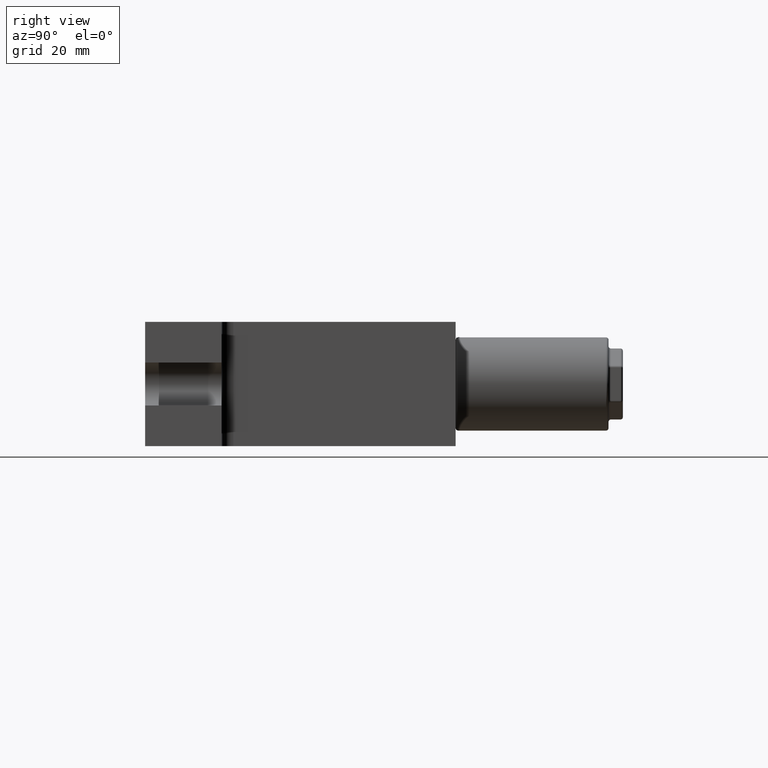
[diagram: clean part render]
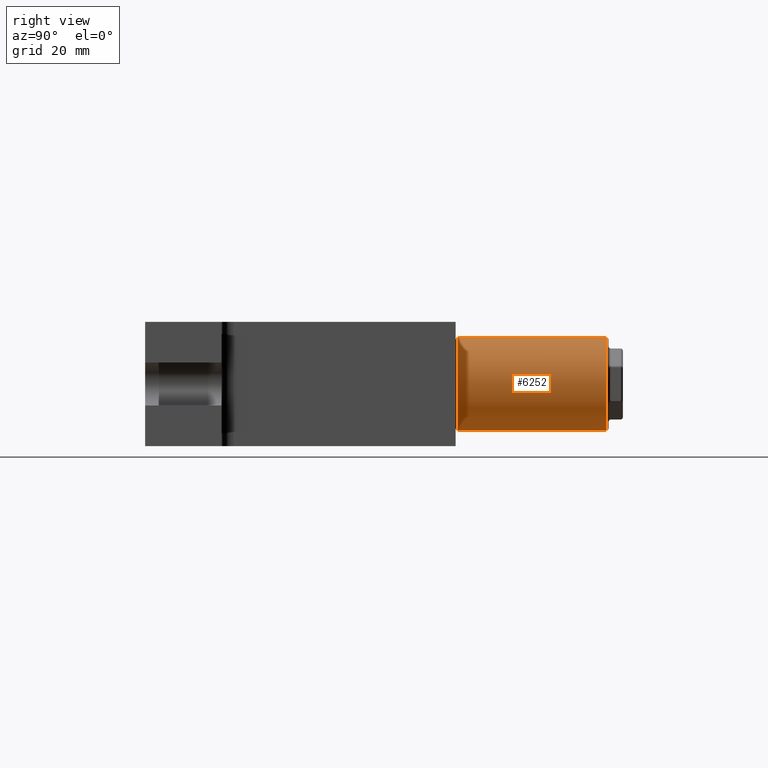
[diagram: same view with one face highlighted and labeled with its STEP entity id]
A machine part, right view. The second image highlights one B-rep face of the part: STEP entity #6252.
In plain terms, the highlighted cylindrical surface (partial cylindrical patch) has radius 9.75 mm, axis along (-0, -1, -0).
Its self-contained STEP definition (entity closure, byte-faithful):
#1 = VECTOR ( 'NONE', #5711, 1000.000000000000000 ) ;
#40 = EDGE_LOOP ( 'NONE', ( #5018, #374, #5954, #2409, #5528, #988, #4615, #1485, #4943, #904, #6233, #1662, #2667, #5456, #3946, #2729 ) ) ;
#54 = VERTEX_POINT ( 'NONE', #243 ) ;
#63 = CARTESIAN_POINT ( 'NONE',  ( -13.00000000000000400, 64.50000000000000000, -9.749999999999998200 ) ) ;
#166 = EDGE_CURVE ( 'NONE', #2999, #788, #1729, .T. ) ;
#174 = CARTESIAN_POINT ( 'NONE',  ( -12.99999999999999800, 64.50000000000000000, 9.750000000000001800 ) ) ;
#243 = CARTESIAN_POINT ( 'NONE',  ( -13.00000000000000000, 40.50000000000000000, 9.750000000000000000 ) ) ;
#292 = LINE ( 'NONE', #6026, #5026 ) ;
#304 = LINE ( 'NONE', #4168, #5886 ) ;
#334 = CARTESIAN_POINT ( 'NONE',  ( -13.00000000000000000, 33.00000000000000000, -1.133443605698015900E-014 ) ) ;
#374 = ORIENTED_EDGE ( 'NONE', *, *, #1121, .T. ) ;
#466 = CARTESIAN_POINT ( 'NONE',  ( -13.00000000000000000, 64.50000000000000000, -9.750000000000000000 ) ) ;
#594 = DIRECTION ( 'NONE',  ( -5.959270968386779200E-017, -1.000000000000000000, -1.089523766022739900E-016 ) ) ;
#599 = DIRECTION ( 'NONE',  ( -5.959270968386779200E-017, -1.000000000000000000, -1.089523766022739900E-016 ) ) ;
#602 = FACE_OUTER_BOUND ( 'NONE', #40, .T. ) ;
#630 = CARTESIAN_POINT ( 'NONE',  ( -13.00000000000000000, 50.50000000000000000, 9.750000000000000000 ) ) ;
#654 = EDGE_CURVE ( 'NONE', #1598, #3763, #2653, .T. ) ;
#677 = EDGE_CURVE ( 'NONE', #1598, #5115, #292, .T. ) ;
#731 = VERTEX_POINT ( 'NONE', #5006 ) ;
#788 = VERTEX_POINT ( 'NONE', #3013 ) ;
#904 = ORIENTED_EDGE ( 'NONE', *, *, #6828, .T. ) ;
#988 = ORIENTED_EDGE ( 'NONE', *, *, #654, .F. ) ;
#1039 = CARTESIAN_POINT ( 'NONE',  ( -13.00000000000000000, 56.50000000000000000, 9.750000000000000000 ) ) ;
#1121 = EDGE_CURVE ( 'NONE', #6250, #2891, #4922, .T. ) ;
#1282 = CARTESIAN_POINT ( 'NONE',  ( -13.00000000000000000, 64.50000000000000000, -9.750000000000000000 ) ) ;
#1306 = DIRECTION ( 'NONE',  ( -5.959270968386779200E-017, -1.000000000000000000, -1.089523766022739900E-016 ) ) ;
#1343 = VERTEX_POINT ( 'NONE', #2350 ) ;
#1376 = EDGE_CURVE ( 'NONE', #54, #3235, #5250, .T. ) ;
#1412 = EDGE_CURVE ( 'NONE', #5115, #54, #2115, .T. ) ;
#1485 = ORIENTED_EDGE ( 'NONE', *, *, #1412, .T. ) ;
#1550 = AXIS2_PLACEMENT_3D ( 'NONE', #334, #4161, #1915 ) ;
#1598 = VERTEX_POINT ( 'NONE', #5774 ) ;
#1612 = LINE ( 'NONE', #63, #2017 ) ;
#1636 = LINE ( 'NONE', #174, #5608 ) ;
#1644 = EDGE_CURVE ( 'NONE', #5058, #3509, #5424, .T. ) ;
#1662 = ORIENTED_EDGE ( 'NONE', *, *, #6987, .T. ) ;
#1676 = DIRECTION ( 'NONE',  ( -1.779203565104417600E-016, 0.0000000000000000000, -1.000000000000000000 ) ) ;
#1722 = CARTESIAN_POINT ( 'NONE',  ( -13.00000000000000000, 42.50000000000000000, 9.750000000000000000 ) ) ;
#1729 = LINE ( 'NONE', #466, #4620 ) ;
#1915 = DIRECTION ( 'NONE',  ( -1.779203565104417600E-016, 0.0000000000000000000, -1.000000000000000000 ) ) ;
#2017 = VECTOR ( 'NONE', #2269, 1000.000000000000000 ) ;
#2115 = LINE ( 'NONE', #2423, #1 ) ;
#2164 = DIRECTION ( 'NONE',  ( -5.959270968386779200E-017, -1.000000000000000000, -1.089523766022739900E-016 ) ) ;
#2251 = DIRECTION ( 'NONE',  ( 1.779203565104417600E-016, 0.0000000000000000000, 1.000000000000000000 ) ) ;
#2266 = VECTOR ( 'NONE', #5411, 1000.000000000000000 ) ;
#2269 = DIRECTION ( 'NONE',  ( -5.959270968386779200E-017, -1.000000000000000000, -1.089523766022739900E-016 ) ) ;
#2350 = CARTESIAN_POINT ( 'NONE',  ( -13.00000000000000000, 50.50000000000000000, -9.750000000000000000 ) ) ;
#2354 = LINE ( 'NONE', #4666, #5072 ) ;
#2361 = EDGE_CURVE ( 'NONE', #6250, #2999, #3540, .T. ) ;
#2370 = DIRECTION ( 'NONE',  ( -5.959270968386779200E-017, -1.000000000000000000, -1.089523766022739900E-016 ) ) ;
#2372 = CARTESIAN_POINT ( 'NONE',  ( -13.00000000000000400, 64.50000000000000000, -9.749999999999998200 ) ) ;
#2409 = ORIENTED_EDGE ( 'NONE', *, *, #2900, .F. ) ;
#2423 = CARTESIAN_POINT ( 'NONE',  ( -13.00000000000000000, 64.50000000000000000, 9.750000000000000000 ) ) ;
#2534 = VECTOR ( 'NONE', #6836, 1000.000000000000000 ) ;
#2555 = DIRECTION ( 'NONE',  ( -5.959270968386779200E-017, -1.000000000000000000, -1.089523766022739900E-016 ) ) ;
#2653 = LINE ( 'NONE', #4351, #4273 ) ;
#2667 = ORIENTED_EDGE ( 'NONE', *, *, #3270, .F. ) ;
#2726 = CARTESIAN_POINT ( 'NONE',  ( -13.00000000000000500, 64.00000000000000000, -9.749999999999998200 ) ) ;
#2727 = VECTOR ( 'NONE', #3090, 1000.000000000000000 ) ;
#2729 = ORIENTED_EDGE ( 'NONE', *, *, #166, .F. ) ;
#2891 = VERTEX_POINT ( 'NONE', #5653 ) ;
#2900 = EDGE_CURVE ( 'NONE', #6062, #731, #2354, .T. ) ;
#2999 = VERTEX_POINT ( 'NONE', #3080 ) ;
#3013 = CARTESIAN_POINT ( 'NONE',  ( -13.00000000000000000, 56.50000000000000000, -9.750000000000000000 ) ) ;
#3045 = VECTOR ( 'NONE', #2370, 1000.000000000000000 ) ;
#3080 = CARTESIAN_POINT ( 'NONE',  ( -13.00000000000000000, 58.50000000000000000, -9.750000000000000000 ) ) ;
#3090 = DIRECTION ( 'NONE',  ( 5.959270968386779200E-017, 1.000000000000000000, 1.089523766022739900E-016 ) ) ;
#3186 = CARTESIAN_POINT ( 'NONE',  ( -13.00000000000000000, 42.50000000000000000, -9.750000000000000000 ) ) ;
#3235 = VERTEX_POINT ( 'NONE', #4957 ) ;
#3252 = LINE ( 'NONE', #1282, #4710 ) ;
#3270 = EDGE_CURVE ( 'NONE', #5725, #6962, #1612, .T. ) ;
#3400 = CIRCLE ( 'NONE', #1550, 9.750000000000000000 ) ;
#3509 = VERTEX_POINT ( 'NONE', #5405 ) ;
#3540 = LINE ( 'NONE', #5387, #2266 ) ;
#3584 = AXIS2_PLACEMENT_3D ( 'NONE', #5391, #2164, #1676 ) ;
#3680 = VECTOR ( 'NONE', #6173, 1000.000000000000000 ) ;
#3699 = CARTESIAN_POINT ( 'NONE',  ( -13.00000000000000000, 64.50000000000000000, -9.750000000000000000 ) ) ;
#3763 = VERTEX_POINT ( 'NONE', #630 ) ;
#3794 = DIRECTION ( 'NONE',  ( 5.959270968386779200E-017, 1.000000000000000000, 1.089523766022739900E-016 ) ) ;
#3810 = CARTESIAN_POINT ( 'NONE',  ( -13.00000000000000000, 64.50000000000000000, 2.543351750834285000E-015 ) ) ;
#3822 = LINE ( 'NONE', #3699, #2727 ) ;
#3946 = ORIENTED_EDGE ( 'NONE', *, *, #4451, .F. ) ;
#4161 = DIRECTION ( 'NONE',  ( 5.959270968386779200E-017, 1.000000000000000000, 1.089523766022739900E-016 ) ) ;
#4168 = CARTESIAN_POINT ( 'NONE',  ( -12.99999999999999800, 64.50000000000000000, 9.750000000000001800 ) ) ;
#4252 = DIRECTION ( 'NONE',  ( -5.959270968386779200E-017, -1.000000000000000000, -1.089523766022739900E-016 ) ) ;
#4273 = VECTOR ( 'NONE', #3794, 1000.000000000000000 ) ;
#4351 = CARTESIAN_POINT ( 'NONE',  ( -13.00000000000000000, 64.50000000000000000, 9.750000000000000000 ) ) ;
#4451 = EDGE_CURVE ( 'NONE', #788, #1343, #6496, .T. ) ;
#4504 = CARTESIAN_POINT ( 'NONE',  ( -13.00000000000000000, 40.50000000000000000, -9.750000000000000000 ) ) ;
#4615 = ORIENTED_EDGE ( 'NONE', *, *, #677, .T. ) ;
#4620 = VECTOR ( 'NONE', #4252, 1000.000000000000000 ) ;
#4648 = EDGE_CURVE ( 'NONE', #2891, #731, #304, .T. ) ;
#4666 = CARTESIAN_POINT ( 'NONE',  ( -13.00000000000000000, 64.50000000000000000, 9.750000000000000000 ) ) ;
#4710 = VECTOR ( 'NONE', #1306, 1000.000000000000000 ) ;
#4826 = CARTESIAN_POINT ( 'NONE',  ( -13.00000000000000400, 64.50000000000000000, -9.749999999999998200 ) ) ;
#4922 = CIRCLE ( 'NONE', #3584, 9.750000000000000000 ) ;
#4943 = ORIENTED_EDGE ( 'NONE', *, *, #1376, .T. ) ;
#4957 = CARTESIAN_POINT ( 'NONE',  ( -12.99999999999999800, 33.00000000000000000, 9.749999999999987600 ) ) ;
#4960 = EDGE_CURVE ( 'NONE', #1343, #5725, #3252, .T. ) ;
#5006 = CARTESIAN_POINT ( 'NONE',  ( -13.00000000000000000, 58.50000000000000000, 9.750000000000000000 ) ) ;
#5018 = ORIENTED_EDGE ( 'NONE', *, *, #2361, .F. ) ;
#5026 = VECTOR ( 'NONE', #599, 1000.000000000000000 ) ;
#5058 = VERTEX_POINT ( 'NONE', #4504 ) ;
#5072 = VECTOR ( 'NONE', #5158, 1000.000000000000000 ) ;
#5097 = CARTESIAN_POINT ( 'NONE',  ( -12.99999999999999800, 64.50000000000000000, 9.750000000000001800 ) ) ;
#5115 = VERTEX_POINT ( 'NONE', #1722 ) ;
#5158 = DIRECTION ( 'NONE',  ( 5.959270968386779200E-017, 1.000000000000000000, 1.089523766022739900E-016 ) ) ;
#5250 = LINE ( 'NONE', #5097, #3045 ) ;
#5387 = CARTESIAN_POINT ( 'NONE',  ( -13.00000000000000400, 64.50000000000000000, -9.749999999999998200 ) ) ;
#5391 = CARTESIAN_POINT ( 'NONE',  ( -13.00000000000000000, 64.00000000000000000, 2.543351750834285000E-015 ) ) ;
#5405 = CARTESIAN_POINT ( 'NONE',  ( -13.00000000000000500, 33.00000000000000000, -9.750000000000012400 ) ) ;
#5411 = DIRECTION ( 'NONE',  ( -5.959270968386779200E-017, -1.000000000000000000, -1.089523766022739900E-016 ) ) ;
#5424 = LINE ( 'NONE', #4826, #2534 ) ;
#5456 = ORIENTED_EDGE ( 'NONE', *, *, #4960, .F. ) ;
#5528 = ORIENTED_EDGE ( 'NONE', *, *, #6764, .T. ) ;
#5582 = AXIS2_PLACEMENT_3D ( 'NONE', #3810, #594, #2251 ) ;
#5606 = DIRECTION ( 'NONE',  ( -5.959270968386779200E-017, -1.000000000000000000, -1.089523766022739900E-016 ) ) ;
#5608 = VECTOR ( 'NONE', #5606, 1000.000000000000000 ) ;
#5653 = CARTESIAN_POINT ( 'NONE',  ( -12.99999999999999800, 64.00000000000000000, 9.750000000000001800 ) ) ;
#5711 = DIRECTION ( 'NONE',  ( -5.959270968386779200E-017, -1.000000000000000000, -1.089523766022739900E-016 ) ) ;
#5725 = VERTEX_POINT ( 'NONE', #6799 ) ;
#5774 = CARTESIAN_POINT ( 'NONE',  ( -13.00000000000000000, 48.50000000000000000, 9.750000000000000000 ) ) ;
#5886 = VECTOR ( 'NONE', #2555, 1000.000000000000000 ) ;
#5954 = ORIENTED_EDGE ( 'NONE', *, *, #4648, .T. ) ;
#6026 = CARTESIAN_POINT ( 'NONE',  ( -12.99999999999999800, 64.50000000000000000, 9.750000000000001800 ) ) ;
#6062 = VERTEX_POINT ( 'NONE', #1039 ) ;
#6173 = DIRECTION ( 'NONE',  ( -5.959270968386779200E-017, -1.000000000000000000, -1.089523766022739900E-016 ) ) ;
#6233 = ORIENTED_EDGE ( 'NONE', *, *, #1644, .F. ) ;
#6250 = VERTEX_POINT ( 'NONE', #2726 ) ;
#6252 = ADVANCED_FACE ( 'NONE', ( #602 ), #6540, .T. ) ;
#6496 = LINE ( 'NONE', #2372, #3680 ) ;
#6540 = CYLINDRICAL_SURFACE ( 'NONE', #5582, 9.750000000000000000 ) ;
#6764 = EDGE_CURVE ( 'NONE', #6062, #3763, #1636, .T. ) ;
#6799 = CARTESIAN_POINT ( 'NONE',  ( -13.00000000000000000, 48.50000000000000000, -9.750000000000000000 ) ) ;
#6828 = EDGE_CURVE ( 'NONE', #3235, #3509, #3400, .T. ) ;
#6836 = DIRECTION ( 'NONE',  ( -5.959270968386779200E-017, -1.000000000000000000, -1.089523766022739900E-016 ) ) ;
#6962 = VERTEX_POINT ( 'NONE', #3186 ) ;
#6987 = EDGE_CURVE ( 'NONE', #5058, #6962, #3822, .T. ) ;